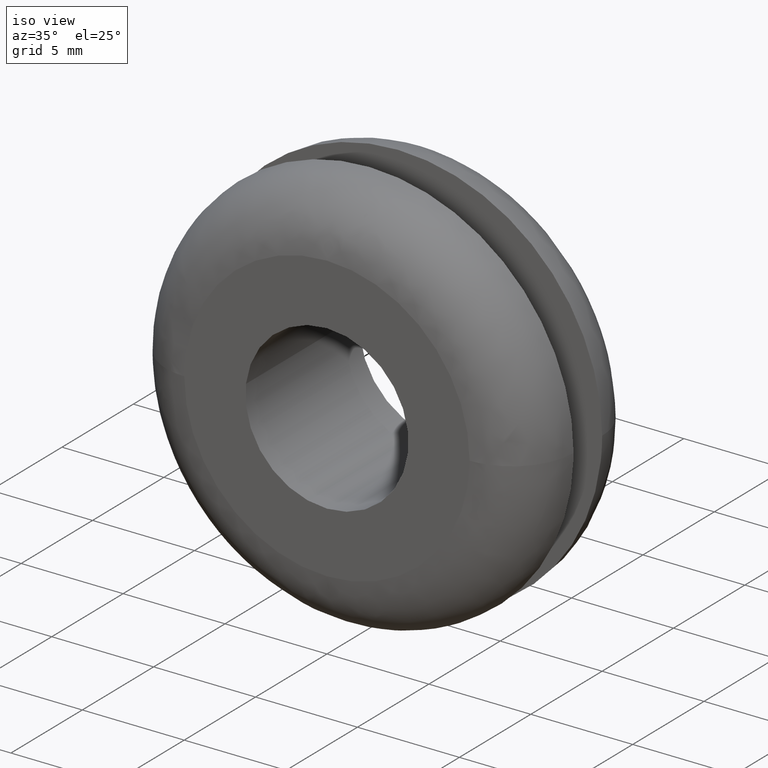
[diagram: clean part render]
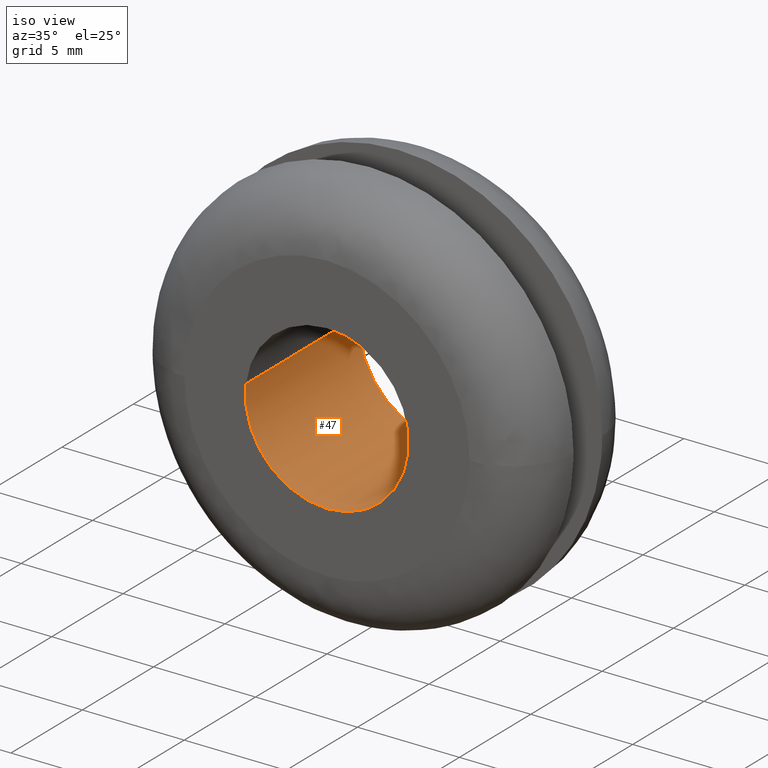
[diagram: same view with one face highlighted and labeled with its STEP entity id]
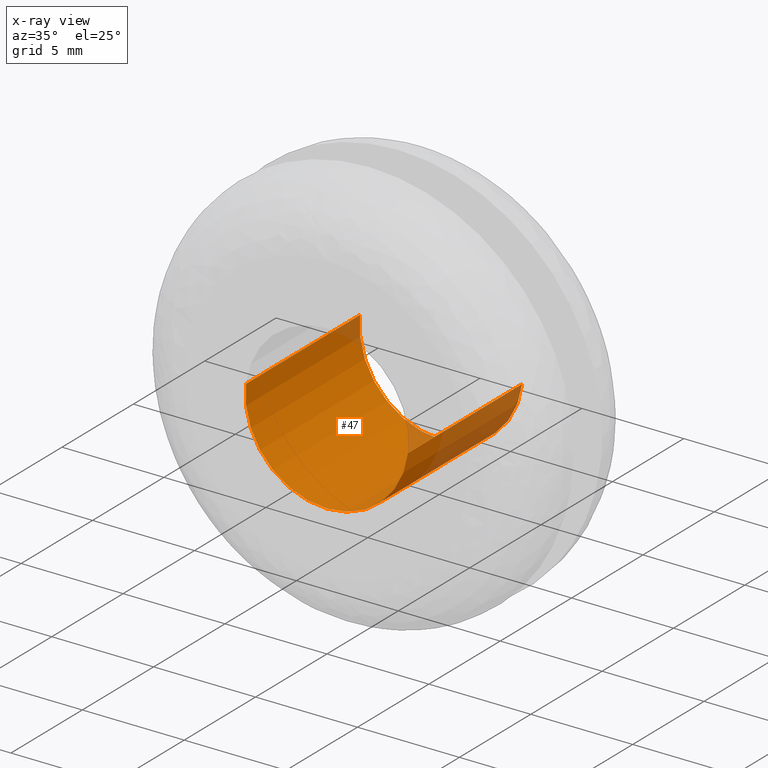
[diagram: x-ray of the same camera — body ghosted, the highlighted face saturated]
A machine part, iso view. The second image highlights one B-rep face of the part: STEP entity #47.
The next image is the same camera in x-ray: the body ghosted, the highlighted face saturated — about 14% of this face is hidden behind the body in this view.
In plain terms, the highlighted cylindrical surface (partial cylindrical patch) has radius 4 mm, axis along (0, 1, 0).
Its self-contained STEP definition (entity closure, byte-faithful):
#47=ADVANCED_FACE('',(#127),#126,.F.);
#126=CYLINDRICAL_SURFACE('',#218,4.00000000000E+000);
#127=FACE_OUTER_BOUND('',#219,.T.);
#215=CARTESIAN_POINT('',(3.77633036272E-015,8.20000000000E+000,3.36809805822E-014));
#216=DIRECTION('',(8.41627251169E-016,1.00000000000E+000,8.02111508812E-015));
#217=DIRECTION('',(-9.93009526364E-001,-1.11022302463E-016,1.18034234657E-001));
#218=AXIS2_PLACEMENT_3D('',#215,#216,#217);
#219=EDGE_LOOP('',(#367,#368,#369,#370,#371,#372));
#367=ORIENTED_EDGE('',*,*,#409,.F.);
#368=ORIENTED_EDGE('',*,*,#411,.F.);
#369=ORIENTED_EDGE('',*,*,#429,.F.);
#370=ORIENTED_EDGE('',*,*,#424,.T.);
#371=ORIENTED_EDGE('',*,*,#426,.T.);
#372=ORIENTED_EDGE('',*,*,#430,.T.);
#409=EDGE_CURVE('',#512,#513,#514,.T.);
#411=EDGE_CURVE('',#520,#512,#527,.T.);
#424=EDGE_CURVE('',#617,#618,#619,.T.);
#426=EDGE_CURVE('',#618,#625,#632,.T.);
#429=EDGE_CURVE('',#617,#520,#650,.T.);
#430=EDGE_CURVE('',#625,#513,#656,.T.);
#512=VERTEX_POINT('',#741);
#513=VERTEX_POINT('',#742);
#514=CIRCLE('',#746,3.99999999999E+000);
#520=VERTEX_POINT('',#747);
#527=CIRCLE('',#755,3.99999999999E+000);
#617=VERTEX_POINT('',#816);
#618=VERTEX_POINT('',#817);
#619=CIRCLE('',#821,3.99999999999E+000);
#625=VERTEX_POINT('',#822);
#632=CIRCLE('',#830,3.99999999999E+000);
#650=(BOUNDED_CURVE() B_SPLINE_CURVE(1,(#835,#836),.UNSPECIFIED.,.F.,.F.) B_SPLINE_CURVE_WITH_KNOTS((2,2),(8.33333366442E-002,9.16666667899E-001),.UNSPECIFIED.) CURVE() GEOMETRIC_REPRESENTATION_ITEM() RATIONAL_B_SPLINE_CURVE((1.00000000000E+000,1.00000000000E+000)) REPRESENTATION_ITEM('') );
#656=(BOUNDED_CURVE() B_SPLINE_CURVE(1,(#837,#838),.UNSPECIFIED.,.F.,.F.) B_SPLINE_CURVE_WITH_KNOTS((2,2),(8.33333333333E-002,9.16666666667E-001),.UNSPECIFIED.) CURVE() GEOMETRIC_REPRESENTATION_ITEM() RATIONAL_B_SPLINE_CURVE((7.50000000000E-001,7.50000000000E-001)) REPRESENTATION_ITEM('') );
#741=CARTESIAN_POINT('',(6.66133814775E-016,8.00000000000E+000,-3.99999999998E+000));
#742=CARTESIAN_POINT('',(3.97195644362E+000,8.00000000000E+000,-4.72823444808E-001));
#743=CARTESIAN_POINT('',(4.21995771660E-012,8.00000000000E+000,9.28590537796E-012));
#744=DIRECTION('',(0.00000000000E+000,-1.00000000000E+000,-0.00000000000E+000));
#745=DIRECTION('',(-1.05444819543E-012,0.00000000000E+000,-1.00000000000E+000));
#746=AXIS2_PLACEMENT_3D('',#743,#744,#745);
#747=CARTESIAN_POINT('',(-3.97203827810E+000,8.00000000000E+000,4.72135486074E-001));
#752=CARTESIAN_POINT('',(4.21995771660E-012,8.00000000000E+000,9.28590537796E-012));
#753=DIRECTION('',(0.00000000000E+000,-1.00000000000E+000,-0.00000000000E+000));
#754=DIRECTION('',(-1.05444819543E-012,0.00000000000E+000,-1.00000000000E+000));
#755=AXIS2_PLACEMENT_3D('',#752,#753,#754);
#816=CARTESIAN_POINT('',(-3.97203827810E+000,5.66130575414E-017,4.72135486074E-001));
#817=CARTESIAN_POINT('',(-2.05391259556E-015,6.47153993998E-015,-3.99999999998E+000));
#818=CARTESIAN_POINT('',(4.11959355517E-012,-1.41182685114E-016,9.06452690685E-012));
#819=DIRECTION('',(-2.46302005888E-016,-1.00000000000E+000,-1.65318065628E-015));
#820=DIRECTION('',(-1.03005104446E-012,1.65318065628E-015,-1.00000000000E+000));
#821=AXIS2_PLACEMENT_3D('',#818,#819,#820);
#822=CARTESIAN_POINT('',(3.97195644362E+000,-3.37820951669E-016,-4.72823444808E-001));
#827=CARTESIAN_POINT('',(4.11959355517E-012,-1.41182685114E-016,9.06452690685E-012));
#828=DIRECTION('',(-2.46302005888E-016,-1.00000000000E+000,-1.65318065628E-015));
#829=DIRECTION('',(-1.03005104446E-012,1.65318065628E-015,-1.00000000000E+000));
#830=AXIS2_PLACEMENT_3D('',#827,#828,#829);
#835=CARTESIAN_POINT('',(-3.97203810545E+000,3.17843147357E-008,4.72136938627E-001));
#836=CARTESIAN_POINT('',(-3.97203810545E+000,8.00000001183E+000,4.72136938627E-001));
#837=CARTESIAN_POINT('',(3.97203810545E+000,2.96059473233E-016,-4.72136938627E-001));
#838=CARTESIAN_POINT('',(3.97203810545E+000,8.00000000000E+000,-4.72136938627E-001));